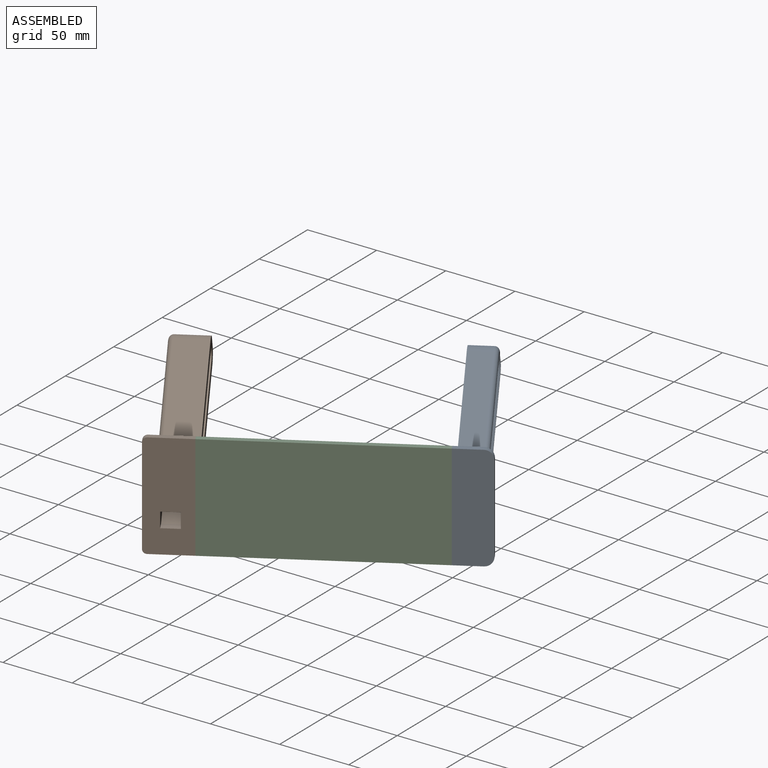
[diagram: assembled view]
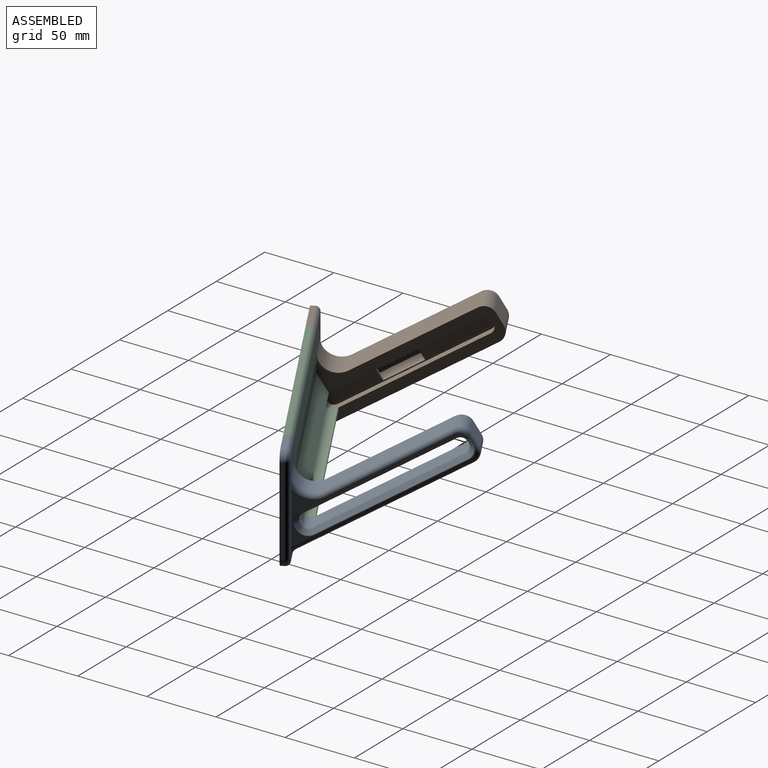
[diagram: assembled view, second angle]
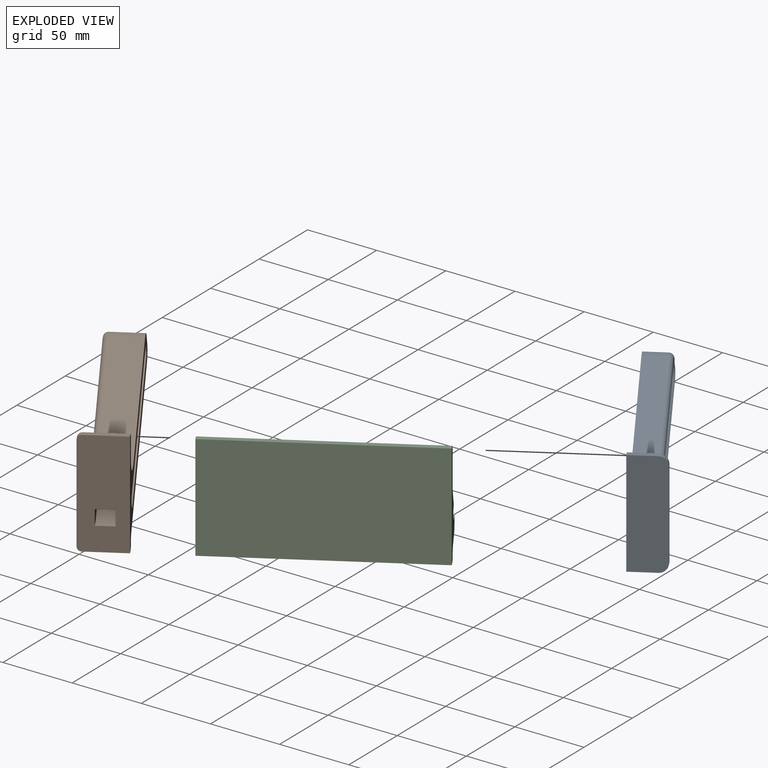
[diagram: exploded view]
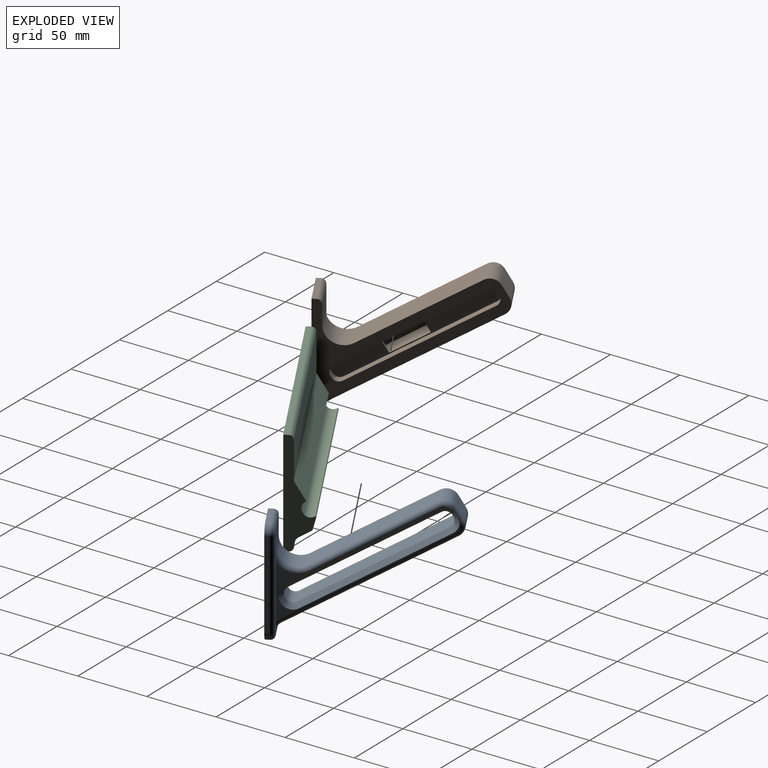
[diagram: exploded view, second angle]
ASSEMBLY  parts=3 mates=6
PART A: 44 faces, bbox 68.3x143.5x25.9 mm
  f0: plane 142.82x68mm, normal (0,0,1), area 2528.7mm2, adj f2,f3,f4,f5,f6,f7,f8,f9
  f1: plane 128.39x33.23mm, normal (0,0,-1), area 408.9mm2, adj f13,f14,f15,f16,f18,f19,f20,f23
  f2: plane 88.75x15.88mm, normal (1,0,0), area 1408.9mm2, adj f0,f21,f28,f42
  f3: plane 15.88x9.53mm, normal (0,1,0), area 151.2mm2, adj f0,f21,f22,f40
  f4: plane 121.75x15.88mm, normal (-1,0,0), area 1932.7mm2, adj f0,f22,f31,f38
  f5: plane 105.54x15.88mm, normal (1,0,0), area 1675.4mm2, adj f0,f9,f12,f20
  f6: plane 15.88x1.4mm, normal (0,1,0), area 22.2mm2, adj f0,f9,f10,f16
  f7: plane 105.54x15.88mm, normal (-1,0,0), area 1675.4mm2, adj f0,f10,f11,f13
  f8: plane 15.88x1.4mm, normal (0,-1,0), area 22.2mm2, adj f0,f11,f12,f17
  f9: cylinder r=4.76mm len=15.88mm, axis (0,0,1), area 118.8mm2, adj f0,f5,f6,f18
  f10: cylinder r=4.76mm len=15.88mm, axis (0,0,-1), area 118.8mm2, adj f0,f6,f7,f14
  f11: cylinder r=4.76mm len=15.88mm, axis (0,0,1), area 118.8mm2, adj f0,f7,f8,f15
  f12: cylinder r=4.76mm len=15.88mm, axis (0,0,-1), area 118.8mm2, adj f0,f5,f8,f19
  f13: plane 105.54x3.18mm, normal (-0.71,0,-0.71), area 473.9mm2, adj f1,f7,f14,f15
  f14: cone r=7.94mm half-angle=45deg, axis (0,0,-1), area 44.8mm2, adj f1,f10,f13,f16
  f15: cone r=7.94mm half-angle=45deg, axis (0,0,-1), area 43.8mm2, adj f1,f11,f13,f17,f40,f41
  f16: plane 3.18x3.18mm, normal (0,0.71,-0.71), area 6.3mm2, adj f1,f6,f14,f18
  f17: plane 2.89x2.89mm, normal (0,-0.71,-0.71), area 5.7mm2, adj f8,f15,f19,f40
  f18: cone r=7.94mm half-angle=45deg, axis (0,0,-1), area 44.8mm2, adj f1,f9,f16,f20
  f19: cone r=7.94mm half-angle=45deg, axis (0,0,-1), area 43.8mm2, adj f1,f12,f17,f20,f39,f40
  f20: plane 105.54x3.18mm, normal (0.71,0,-0.71), area 473.9mm2, adj f1,f5,f18,f19
  f21: cylinder r=7.94mm len=15.88mm, axis (0,0,1), area 197.9mm2, adj f0,f2,f3,f41
  f22: cylinder r=7.94mm len=15.88mm, axis (0,0,-1), area 197.9mm2, adj f0,f3,f4,f39
  f23: plane 60.49x34.93mm, normal (-0.5,0.87,0), area 520.1mm2, adj f0,f1,f28,f31,f32,f33,f34,f35
  f24: plane 19.05x2.75mm, normal (0.87,0.5,0), area 60.5mm2, adj f0,f27,f30,f36
  f25: plane 19.05x2.75mm, normal (-0.87,-0.5,0), area 60.5mm2, adj f0,f27,f29,f32
  f26: plane 56.58x34.5mm, normal (0,0,-1), area 201.6mm2, adj f27,f29,f30,f34
  f27: plane 65.99x38.1mm, normal (0.5,-0.87,0), area 1918.2mm2, adj f0,f24,f25,f26,f29,f30
  f28: cylinder r=12.7mm len=19.05mm, axis (0,0,1), area 422.3mm2, adj f0,f2,f23,f43
  f29: cylinder r=6.35mm len=7.09mm, axis (0.5,-0.87,0), area 31.7mm2, adj f25,f26,f27,f33
  f30: cylinder r=6.35mm len=7.09mm, axis (-0.5,0.87,0), area 31.7mm2, adj f24,f26,f27,f35
  f31: cylinder r=6.35mm len=15.88mm, axis (0,0,1), area 105.6mm2, adj f0,f4,f23,f37
  f32: cylinder r=3.17mm len=19.05mm, axis (0,0,-1), area 95mm2, adj f0,f23,f25,f33
  f33: torus R=3.17mm, axis (0.5,-0.87,0), area 40.7mm2, adj f23,f29,f32,f34
  f34: cylinder r=3.17mm len=56.58mm, axis (0.87,0.5,0), area 316.7mm2, adj f23,f26,f33,f35
  f35: torus R=3.17mm, axis (0.5,-0.87,0), area 40.7mm2, adj f23,f30,f34,f36
  f36: cylinder r=3.17mm len=19.05mm, axis (0,0,1), area 95mm2, adj f0,f23,f24,f35
  f37: torus R=9.53mm, axis (0,0,1), area 20.1mm2, adj f1,f23,f31,f38
  f38: cylinder r=3.17mm len=121.75mm, axis (0,-1,0), area 607.2mm2, adj f1,f4,f37,f39
  f39: torus R=4.76mm, axis (0,0,1), area 53mm2, adj f1,f19,f22,f38,f40
  f40: cylinder r=3.17mm len=9.53mm, axis (-1,0,0), area 37mm2, adj f3,f15,f17,f19,f39,f41
  f41: torus R=4.76mm, axis (0,0,1), area 53mm2, adj f1,f15,f21,f40,f42
  f42: cylinder r=3.17mm len=88.75mm, axis (0,1,0), area 442.6mm2, adj f1,f2,f41,f43
  f43: torus R=15.88mm, axis (0,0,1), area 119.3mm2, adj f1,f23,f28,f42
PART B: 45 faces, bbox 68x143.5x31.8 mm
  f0: plane 9.4x2.26mm, normal (0,1,0), area 21.2mm2, adj f1,f12,f13,f15
  f1: plane 115.06x10.92mm, normal (0,0,1), area 966.3mm2, adj f0,f7,f8,f9,f10,f11,f12,f13
  f2: plane 142.82x68mm, normal (0,0,1), area 2528.7mm2, adj f3,f4,f5,f7,f8,f9,f10,f18
  f3: plane 121.75x22.23mm, normal (1,0,0), area 2705.8mm2, adj f2,f31,f32,f39
  f4: plane 22.23x9.53mm, normal (0,1,0), area 211.7mm2, adj f2,f32,f33,f41
  f5: plane 88.75x22.23mm, normal (-1,0,0), area 1972.5mm2, adj f2,f30,f33,f43
  f6: plane 128.46x33.23mm, normal (0,0,-1), area 2439.3mm2, adj f22,f38,f39,f40,f41,f42,f43,f44
  f7: plane 6.35x1.4mm, normal (0,-1,0), area 8.9mm2, adj f1,f2,f34,f37
  f8: plane 105.54x6.35mm, normal (1,0,0), area 670.2mm2, adj f1,f2,f34,f35
  f9: plane 6.35x1.4mm, normal (0,1,0), area 8.9mm2, adj f1,f2,f35,f36
  f10: plane 105.54x6.35mm, normal (-1,0,0), area 670.2mm2, adj f1,f2,f36,f37
  f11: plane 14.61x9.4mm, normal (0,-1,0), area 137.3mm2, adj f1,f12,f13,f14
  f12: plane 68.6x14.61mm, normal (1,0,0), area 912mm2, adj f0,f1,f11,f14,f15,f17
  f13: plane 74.03x14.61mm, normal (-1,0,0), area 979mm2, adj f0,f1,f11,f14,f15,f16
  f14: plane 79.53x12.57mm, normal (0,0,1), area 739.1mm2, adj f11,f12,f13,f16,f17,f21
  f15: plane 50.7x12.57mm, normal (0,0,-1), area 468.2mm2, adj f0,f12,f13,f16,f17,f21
  f16: plane 12.34x5.5mm, normal (-0.87,0.5,0), area 78.4mm2, adj f13,f14,f15,f21
  f17: plane 12.34x5.5mm, normal (0.87,-0.5,0), area 78.4mm2, adj f12,f14,f15,f21
  f18: plane 28.58x2.75mm, normal (0.87,-0.5,0), area 90.7mm2, adj f2,f21,f23,f24
  f19: plane 28.58x2.75mm, normal (-0.87,0.5,0), area 90.7mm2, adj f2,f21,f27,f29
  f20: plane 62.08x37.67mm, normal (0,0,-1), area 221.8mm2, adj f21,f23,f26,f29
  f21: plane 65.99x38.1mm, normal (-0.5,-0.87,0), area 2281.1mm2, adj f2,f14,f15,f16,f17,f18,f19,f20
  f22: plane 60.49x34.93mm, normal (0.5,0.87,0), area 618.7mm2, adj f2,f6,f24,f26,f27,f30,f31,f38
  f23: cylinder r=3.17mm len=4.34mm, axis (-0.5,-0.87,0), area 15.8mm2, adj f18,f20,f21,f25
  f24: cylinder r=3.17mm len=28.58mm, axis (0,0,1), area 142.5mm2, adj f2,f18,f22,f25
  f25: sphere r=3.17mm, area 15.8mm2, adj f23,f24,f26
  f26: cylinder r=3.17mm len=62.08mm, axis (0.87,-0.5,0), area 348.4mm2, adj f20,f22,f25,f28
  f27: cylinder r=3.17mm len=28.58mm, axis (0,0,-1), area 142.5mm2, adj f2,f19,f22,f28
  f28: sphere r=3.17mm, area 15.8mm2, adj f26,f27,f29
  f29: cylinder r=3.17mm len=4.34mm, axis (0.5,0.87,0), area 15.8mm2, adj f19,f20,f21,f28
  f30: cylinder r=12.7mm len=22.23mm, axis (0,0,-1), area 591.2mm2, adj f2,f5,f22,f44
  f31: cylinder r=6.35mm len=22.23mm, axis (0,0,-1), area 147.8mm2, adj f2,f3,f22,f38
  f32: cylinder r=7.94mm len=22.23mm, axis (0,0,1), area 277.1mm2, adj f2,f3,f4,f40
  f33: cylinder r=7.94mm len=22.23mm, axis (0,0,-1), area 277.1mm2, adj f2,f4,f5,f42
  f34: cylinder r=4.76mm len=6.35mm, axis (0,0,1), area 47.5mm2, adj f1,f2,f7,f8
  f35: cylinder r=4.76mm len=6.35mm, axis (0,0,-1), area 47.5mm2, adj f1,f2,f8,f9
  f36: cylinder r=4.76mm len=6.35mm, axis (0,0,1), area 47.5mm2, adj f1,f2,f9,f10
  f37: cylinder r=4.76mm len=6.35mm, axis (0,0,-1), area 47.5mm2, adj f1,f2,f7,f10
  f38: torus R=9.53mm, axis (0,0,1), area 20.1mm2, adj f6,f22,f31,f39
  f39: cylinder r=3.17mm len=121.75mm, axis (0,1,0), area 607.2mm2, adj f3,f6,f38,f40
  f40: torus R=4.76mm, axis (0,0,1), area 53.1mm2, adj f6,f32,f39,f41
  f41: cylinder r=3.17mm len=9.53mm, axis (-1,0,0), area 47.5mm2, adj f4,f6,f40,f42
  f42: torus R=4.76mm, axis (0,0,1), area 53.1mm2, adj f6,f33,f41,f43
  f43: cylinder r=3.17mm len=88.75mm, axis (0,-1,0), area 442.6mm2, adj f5,f6,f42,f44
  f44: torus R=15.88mm, axis (0,0,1), area 119.3mm2, adj f6,f22,f30,f43
PART C: 19 faces, bbox 152.4x42.4x68 mm
  f0: plane 152.4x23.37mm, normal (0,0.87,-0.5), area 4112.9mm2, adj f2,f3,f4,f15
  f1: plane 152.4x0.89mm, normal (0,1,0), area 135.5mm2, adj f2,f3,f6,f18
  f2: plane 68x42.44mm, normal (-1,0,0), area 725.1mm2, adj f0,f1,f4,f5,f6,f7,f8,f9
  f3: plane 68x42.44mm, normal (1,0,0), area 725.1mm2, adj f0,f1,f4,f5,f6,f7,f8,f9
  f4: plane 152.4x14.83mm, normal (0,1,0), area 2260.8mm2, adj f0,f2,f3,f8
  f5: plane 152.4x9.03mm, normal (0,0,-1), area 1376.8mm2, adj f2,f3,f17,f18
  f6: plane 152.4x0.77mm, normal (0,0,1), area 118.1mm2, adj f1,f2,f3,f9
  f7: plane 152.4x1.4mm, normal (0,1,0), area 212.9mm2, adj f2,f3,f9,f10
  f8: plane 152.4x0.77mm, normal (0,0,-1), area 118.1mm2, adj f2,f3,f4,f10
  f9: cylinder r=4.76mm len=152.4mm, axis (1,0,0), area 1140.1mm2, adj f2,f3,f6,f7
  f10: cylinder r=4.76mm len=152.4mm, axis (-1,0,0), area 1140.1mm2, adj f2,f3,f7,f8
  f11: plane 152.4x2.75mm, normal (0,-0.5,-0.87), area 483.9mm2, adj f2,f3,f13,f16
  f12: plane 152.4x2.75mm, normal (0,0.5,0.87), area 483.9mm2, adj f2,f3,f13,f15
  f13: plane 152.4x65.99mm, normal (0,-0.87,0.5), area 11612.9mm2, adj f2,f3,f11,f12
  f14: plane 152.4x0.95mm, normal (0,0.87,-0.5), area 167.1mm2, adj f2,f3,f16,f17
  f15: cylinder r=3.17mm len=152.4mm, axis (-1,0,0), area 760.1mm2, adj f0,f2,f3,f12
  f16: cylinder r=3.17mm len=152.4mm, axis (1,0,0), area 760.1mm2, adj f2,f3,f11,f14
  f17: cylinder r=6.35mm len=152.4mm, axis (1,0,0), area 1013.4mm2, adj f2,f3,f5,f14
  f18: plane 152.4x6.35mm, normal (0,0.71,-0.71), area 1368.6mm2, adj f1,f2,f3,f5
PLACE A rot(axis=(0.5,-0.87,0),90deg) t=(-66.8,64.96,106.16)mm
PLACE B rot(axis=(0,0.89,0.45),104.5deg) t=(-237.27,-33.47,106.16)mm
PLACE C rot(axis=(0.69,0.19,0.69),42.2deg) t=(-127.71,-20.03,66.58)mm fixed
MATE planar A.f0 <-> C.f3  axis (-0.87,-0.5,0) through (-77.89,46.08,103.72)mm
MATE planar C.f11 <-> B.f18  axis (0,0,-1) through (-121.21,-31.3,53.88)mm
MATE planar C.f13 <-> A.f27  axis (0.5,-0.87,0) through (-120.41,-32.67,91.98)mm
MATE planar B.f21 <-> C.f13  axis (0.5,-0.87,0) through (-200.18,-78.73,92.89)mm
MATE planar B.f2 <-> C.f2  axis (0.87,0.5,0) through (-189.58,-65.27,113.15)mm
MATE planar A.f25 <-> C.f11  axis (0,0,-1) through (-46.97,11.56,53.88)mm
